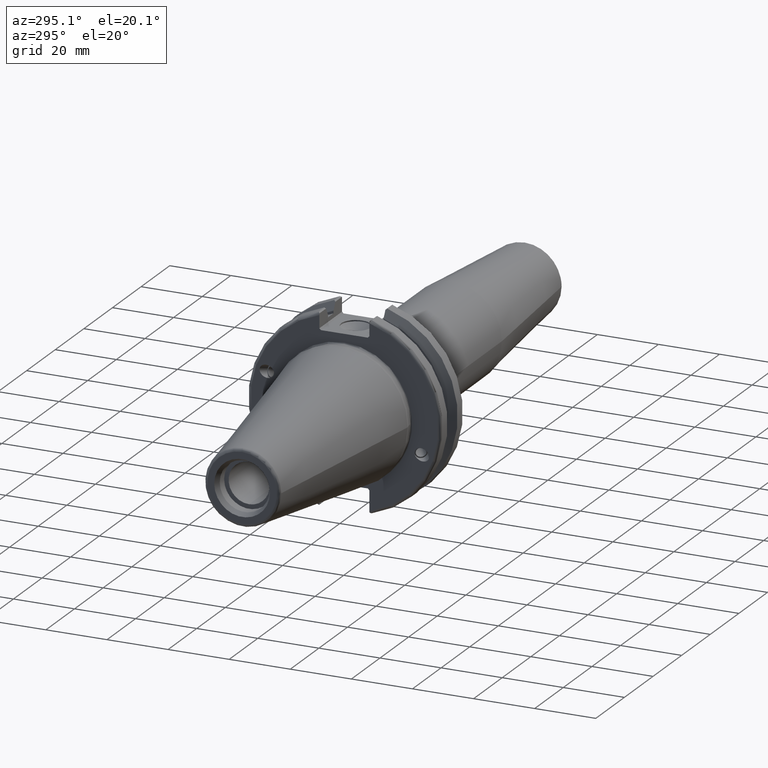
[diagram: clean part render]
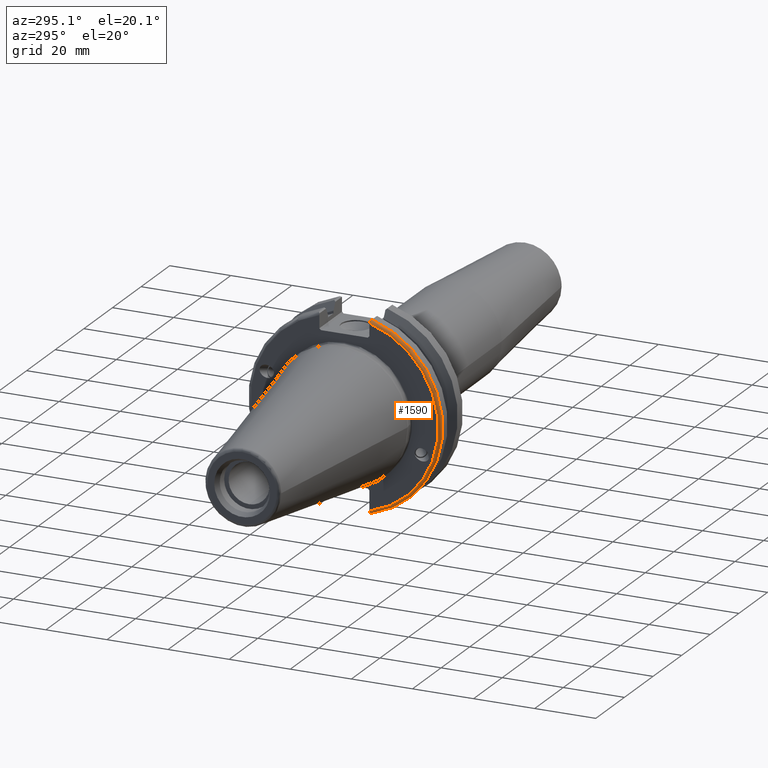
[diagram: same view with one face highlighted and labeled with its STEP entity id]
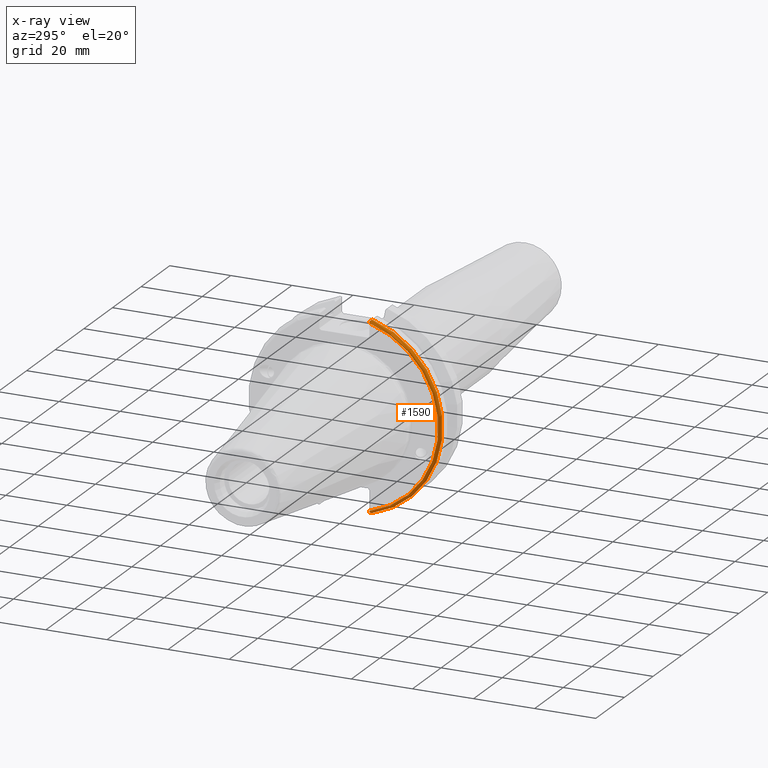
[diagram: x-ray of the same camera — body ghosted, the highlighted face saturated]
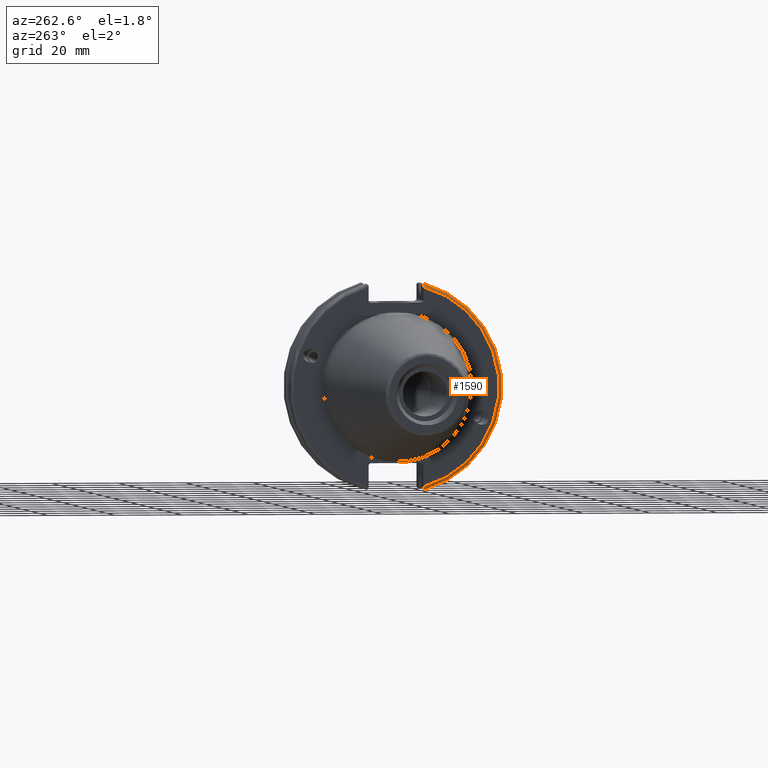
[diagram: same view with one face highlighted and labeled with its STEP entity id]
A machine part, auxiliary view. The second image highlights one B-rep face of the part: STEP entity #1590.
The next image is the same camera in x-ray: the body ghosted, the highlighted face saturated — about 0% of this face is hidden behind the body in this view.
A second angle (auxiliary view) of the same face is appended — the face is thin or edge-on in the first view.
In plain terms, the highlighted toroidal blend (fillet) surface has major radius 30.75 mm and minor (blend) radius 1 mm.
Its self-contained STEP definition (entity closure, byte-faithful):
#54=B_SPLINE_CURVE_WITH_KNOTS('',3,(#2916,#2917,#2918,#2919,#2920,#2921),
 .UNSPECIFIED.,.F.,.F.,(4,2,4),(0.0977210450333167,0.111963554372601,0.150804064902975),
 .UNSPECIFIED.);
#55=B_SPLINE_CURVE_WITH_KNOTS('',3,(#2942,#2943,#2944,#2945,#2946,#2947),
 .UNSPECIFIED.,.F.,.F.,(4,2,4),(0.452741154494498,0.491581665024872,0.505824174364157),
 .UNSPECIFIED.);
#56=B_SPLINE_CURVE_WITH_KNOTS('',3,(#2951,#2952,#2953,#2954,#2955,#2956,
#2957,#2958),.UNSPECIFIED.,.F.,.F.,(4,2,2,4),(-0.104180282751877,-0.0729784742461442,
-0.0343524753874977,0.),.UNSPECIFIED.);
#57=B_SPLINE_CURVE_WITH_KNOTS('',3,(#2961,#2962,#2963,#2964,#2965,#2966,
#2967,#2968),.UNSPECIFIED.,.F.,.F.,(4,2,2,4),(0.,0.0343524753874981,0.0729784742461436,
0.104180282751876),.UNSPECIFIED.);
#121=TOROIDAL_SURFACE('',#1779,30.75,1.);
#229=FACE_OUTER_BOUND('',#335,.T.);
#335=EDGE_LOOP('',(#1354,#1355,#1356,#1357,#1358,#1359));
#621=CIRCLE('',#1767,30.75);
#626=CIRCLE('',#1780,31.75);
#751=VERTEX_POINT('',#2796);
#752=VERTEX_POINT('',#2797);
#775=VERTEX_POINT('',#2915);
#781=VERTEX_POINT('',#2940);
#782=VERTEX_POINT('',#2950);
#783=VERTEX_POINT('',#2959);
#947=EDGE_CURVE('',#751,#752,#621,.T.);
#979=EDGE_CURVE('',#775,#751,#54,.T.);
#989=EDGE_CURVE('',#752,#781,#55,.T.);
#991=EDGE_CURVE('',#781,#782,#56,.T.);
#992=EDGE_CURVE('',#782,#783,#626,.T.);
#993=EDGE_CURVE('',#783,#775,#57,.T.);
#1354=ORIENTED_EDGE('',*,*,#991,.T.);
#1355=ORIENTED_EDGE('',*,*,#992,.T.);
#1356=ORIENTED_EDGE('',*,*,#993,.T.);
#1357=ORIENTED_EDGE('',*,*,#979,.T.);
#1358=ORIENTED_EDGE('',*,*,#947,.T.);
#1359=ORIENTED_EDGE('',*,*,#989,.T.);
#1590=ADVANCED_FACE('',(#229),#121,.T.);
#1767=AXIS2_PLACEMENT_3D('',#2798,#2123,#2124);
#1779=AXIS2_PLACEMENT_3D('',#2949,#2171,#2172);
#1780=AXIS2_PLACEMENT_3D('',#2960,#2173,#2174);
#2123=DIRECTION('center_axis',(1.,0.,0.));
#2124=DIRECTION('ref_axis',(0.,-1.,1.60812264967664E-16));
#2171=DIRECTION('center_axis',(1.,0.,0.));
#2172=DIRECTION('ref_axis',(0.,0.,-1.));
#2173=DIRECTION('center_axis',(-1.,0.,0.));
#2174=DIRECTION('ref_axis',(0.,-1.,1.60812264967664E-16));
#2796=CARTESIAN_POINT('',(3.175,-8.18999999999999,29.6392712461019));
#2797=CARTESIAN_POINT('',(3.175,-8.19,-29.6392712461019));
#2798=CARTESIAN_POINT('Origin',(3.175,0.,0.));
#2915=CARTESIAN_POINT('',(3.31912772509028,-8.19,30.1755016258903));
#2916=CARTESIAN_POINT('Ctrl Pts',(3.31912772509028,-8.19,30.1755016258903));
#2917=CARTESIAN_POINT('Ctrl Pts',(3.29318362718666,-8.19,30.131014531546));
#2918=CARTESIAN_POINT('Ctrl Pts',(3.27103565282437,-8.19,30.0852355256475));
#2919=CARTESIAN_POINT('Ctrl Pts',(3.20451443291695,-8.19,29.9212724384851));
#2920=CARTESIAN_POINT('Ctrl Pts',(3.175,-8.19,29.7687396145364));
#2921=CARTESIAN_POINT('Ctrl Pts',(3.175,-8.19,29.6392712461019));
#2940=CARTESIAN_POINT('',(3.31912772509028,-8.19,-30.1755016258903));
#2942=CARTESIAN_POINT('Ctrl Pts',(3.175,-8.19,-29.6392712461018));
#2943=CARTESIAN_POINT('Ctrl Pts',(3.175,-8.19,-29.7687396145364));
#2944=CARTESIAN_POINT('Ctrl Pts',(3.20451443291695,-8.19,-29.9212724384851));
#2945=CARTESIAN_POINT('Ctrl Pts',(3.27103565282437,-8.19,-30.0852355256475));
#2946=CARTESIAN_POINT('Ctrl Pts',(3.29318362718666,-8.19,-30.131014531546));
#2947=CARTESIAN_POINT('Ctrl Pts',(3.31912772509028,-8.19,-30.1755016258903));
#2949=CARTESIAN_POINT('Origin',(4.175,0.,0.));
#2950=CARTESIAN_POINT('',(4.175,-8.67204822802685,-30.5427254764662));
#2951=CARTESIAN_POINT('Ctrl Pts',(3.31912772509028,-8.19,-30.1755016258903));
#2952=CARTESIAN_POINT('Ctrl Pts',(3.36755369570113,-8.27036828330781,-30.2367261024977));
#2953=CARTESIAN_POINT('Ctrl Pts',(3.43232973376814,-8.34909446036477,-30.2966996242308));
#2954=CARTESIAN_POINT('Ctrl Pts',(3.58532758094931,-8.48862804755884,-30.4029961692546));
#2955=CARTESIAN_POINT('Ctrl Pts',(3.70655857052286,-8.56482138642532,-30.4610401774263));
#2956=CARTESIAN_POINT('Ctrl Pts',(3.92668295662254,-8.6471881193939,-30.5237870709558));
#2957=CARTESIAN_POINT('Ctrl Pts',(4.06049174870834,-8.67204822802686,-30.5427254764662));
#2958=CARTESIAN_POINT('Ctrl Pts',(4.175,-8.67204822802686,-30.5427254764662));
#2959=CARTESIAN_POINT('',(4.175,-8.67204822802685,30.5427254764662));
#2960=CARTESIAN_POINT('Origin',(4.175,0.,0.));
#2961=CARTESIAN_POINT('Ctrl Pts',(4.175,-8.67204822802686,30.5427254764662));
#2962=CARTESIAN_POINT('Ctrl Pts',(4.06049174870834,-8.67204822802686,30.5427254764662));
#2963=CARTESIAN_POINT('Ctrl Pts',(3.92668295662254,-8.64718811939389,30.5237870709558));
#2964=CARTESIAN_POINT('Ctrl Pts',(3.70655857052286,-8.56482138642532,30.4610401774263));
#2965=CARTESIAN_POINT('Ctrl Pts',(3.58532758094931,-8.48862804755884,30.4029961692546));
#2966=CARTESIAN_POINT('Ctrl Pts',(3.43232973376814,-8.34909446036478,30.2966996242308));
#2967=CARTESIAN_POINT('Ctrl Pts',(3.36755369570113,-8.2703682833078,30.2367261024977));
#2968=CARTESIAN_POINT('Ctrl Pts',(3.31912772509028,-8.19,30.1755016258903));